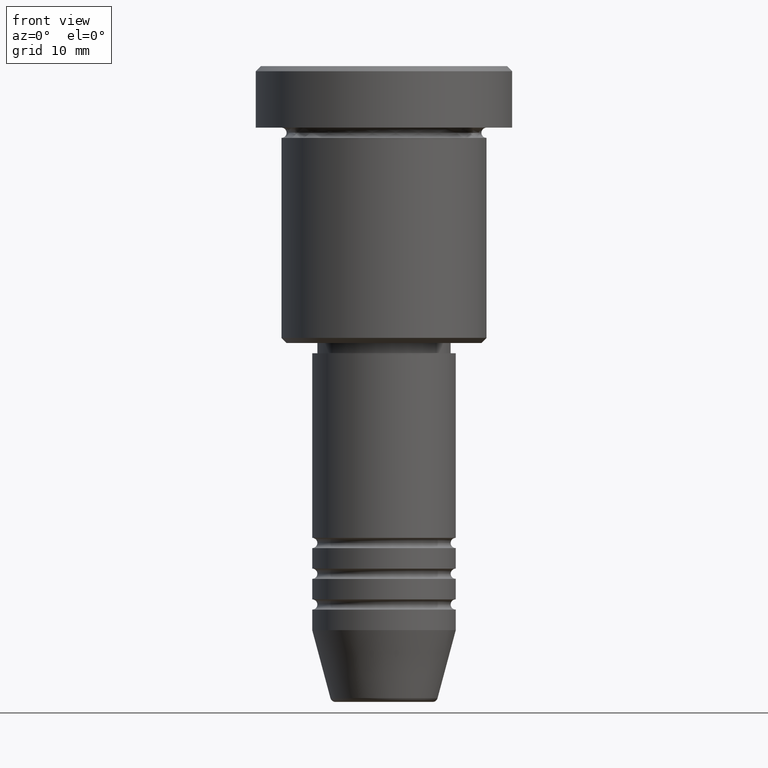
[diagram: clean part render]
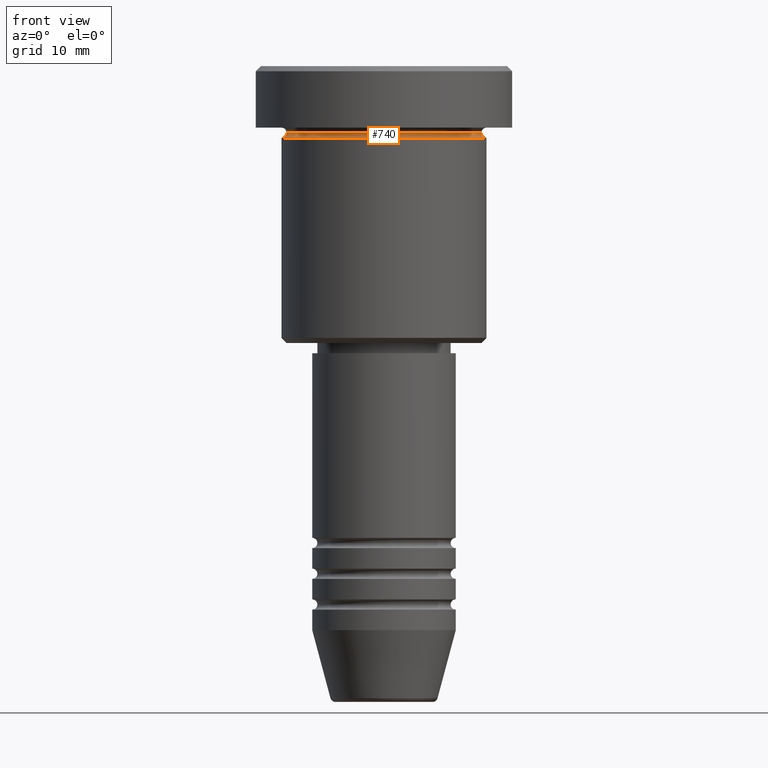
[diagram: same view with one face highlighted and labeled with its STEP entity id]
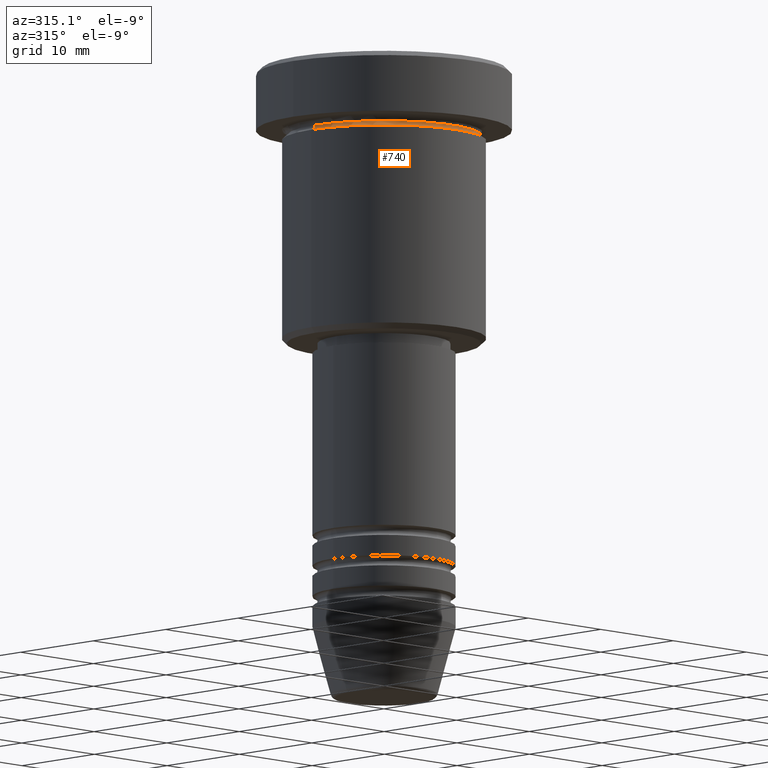
[diagram: same view with one face highlighted and labeled with its STEP entity id]
A machine part, front view. The second image highlights one B-rep face of the part: STEP entity #740.
A second angle (auxiliary view) of the same face is appended — the face is thin or edge-on in the first view.
In plain terms, the highlighted toroidal blend (fillet) surface has major radius 10 mm and minor (blend) radius 0.5 mm.
Its self-contained STEP definition (entity closure, byte-faithful):
#67 = DIRECTION ( 'NONE',  ( -0.000000000000000000, -0.000000000000000000, 1.000000000000000000 ) ) ;
#127 = CARTESIAN_POINT ( 'NONE',  ( 0.000000000000000000, 0.000000000000000000, -6.499999999999997335 ) ) ;
#135 = CARTESIAN_POINT ( 'NONE',  ( -10.00000000000000000, 1.224646799147353256E-15, -6.999999999999996447 ) ) ;
#141 = AXIS2_PLACEMENT_3D ( 'NONE', #916, #732, #667 ) ;
#162 = EDGE_LOOP ( 'NONE', ( #353, #838, #221, #708 ) ) ;
#186 = EDGE_CURVE ( 'NONE', #520, #327, #1174, .T. ) ;
#195 = CARTESIAN_POINT ( 'NONE',  ( 9.500000000000000000, 0.000000000000000000, -6.499999999999997335 ) ) ;
#201 = TOROIDAL_SURFACE ( 'NONE', #310, 10.00000000000000000, 0.5000000000000000000 ) ;
#221 = ORIENTED_EDGE ( 'NONE', *, *, #258, .T. ) ;
#223 = EDGE_CURVE ( 'NONE', #1125, #520, #1126, .T. ) ;
#235 = CARTESIAN_POINT ( 'NONE',  ( 0.000000000000000000, 0.000000000000000000, -6.999999999999996447 ) ) ;
#258 = EDGE_CURVE ( 'NONE', #1143, #327, #415, .T. ) ;
#310 = AXIS2_PLACEMENT_3D ( 'NONE', #127, #67, #601 ) ;
#327 = VERTEX_POINT ( 'NONE', #1161 ) ;
#338 = CIRCLE ( 'NONE', #558, 0.5000000000000004441 ) ;
#353 = ORIENTED_EDGE ( 'NONE', *, *, #223, .F. ) ;
#415 = CIRCLE ( 'NONE', #555, 10.00000000000000000 ) ;
#419 = FACE_OUTER_BOUND ( 'NONE', #162, .T. ) ;
#503 = DIRECTION ( 'NONE',  ( 1.000000000000000000, 0.000000000000000000, 0.000000000000000000 ) ) ;
#520 = VERTEX_POINT ( 'NONE', #195 ) ;
#555 = AXIS2_PLACEMENT_3D ( 'NONE', #235, #1139, #503 ) ;
#558 = AXIS2_PLACEMENT_3D ( 'NONE', #673, #939, #955 ) ;
#601 = DIRECTION ( 'NONE',  ( 1.000000000000000000, 0.000000000000000000, 0.000000000000000000 ) ) ;
#643 = DIRECTION ( 'NONE',  ( 1.000000000000000000, 0.000000000000000000, 0.000000000000000000 ) ) ;
#667 = DIRECTION ( 'NONE',  ( 0.000000000000000000, 0.000000000000000000, -1.000000000000000000 ) ) ;
#673 = CARTESIAN_POINT ( 'NONE',  ( -10.00000000000000000, 1.224646799147353256E-15, -6.499999999999997335 ) ) ;
#698 = EDGE_CURVE ( 'NONE', #1125, #1143, #338, .T. ) ;
#708 = ORIENTED_EDGE ( 'NONE', *, *, #186, .F. ) ;
#732 = DIRECTION ( 'NONE',  ( 0.000000000000000000, -1.000000000000000000, 0.000000000000000000 ) ) ;
#740 = ADVANCED_FACE ( 'NONE', ( #419 ), #201, .F. ) ;
#838 = ORIENTED_EDGE ( 'NONE', *, *, #698, .T. ) ;
#916 = CARTESIAN_POINT ( 'NONE',  ( 10.00000000000000000, 0.000000000000000000, -6.499999999999997335 ) ) ;
#921 = CARTESIAN_POINT ( 'NONE',  ( 0.000000000000000000, 0.000000000000000000, -6.499999999999997335 ) ) ;
#939 = DIRECTION ( 'NONE',  ( 1.224646799147353207E-16, 1.000000000000000000, 0.000000000000000000 ) ) ;
#949 = AXIS2_PLACEMENT_3D ( 'NONE', #921, #1091, #643 ) ;
#955 = DIRECTION ( 'NONE',  ( -1.000000000000000000, 1.224646799147353454E-16, 0.000000000000000000 ) ) ;
#1091 = DIRECTION ( 'NONE',  ( -0.000000000000000000, -0.000000000000000000, 1.000000000000000000 ) ) ;
#1093 = CARTESIAN_POINT ( 'NONE',  ( -9.500000000000000000, 1.194030629168669469E-15, -6.499999999999997335 ) ) ;
#1125 = VERTEX_POINT ( 'NONE', #1093 ) ;
#1126 = CIRCLE ( 'NONE', #949, 9.500000000000000000 ) ;
#1139 = DIRECTION ( 'NONE',  ( -0.000000000000000000, -0.000000000000000000, 1.000000000000000000 ) ) ;
#1143 = VERTEX_POINT ( 'NONE', #135 ) ;
#1161 = CARTESIAN_POINT ( 'NONE',  ( 10.00000000000000000, 0.000000000000000000, -6.999999999999996447 ) ) ;
#1174 = CIRCLE ( 'NONE', #141, 0.5000000000000004441 ) ;